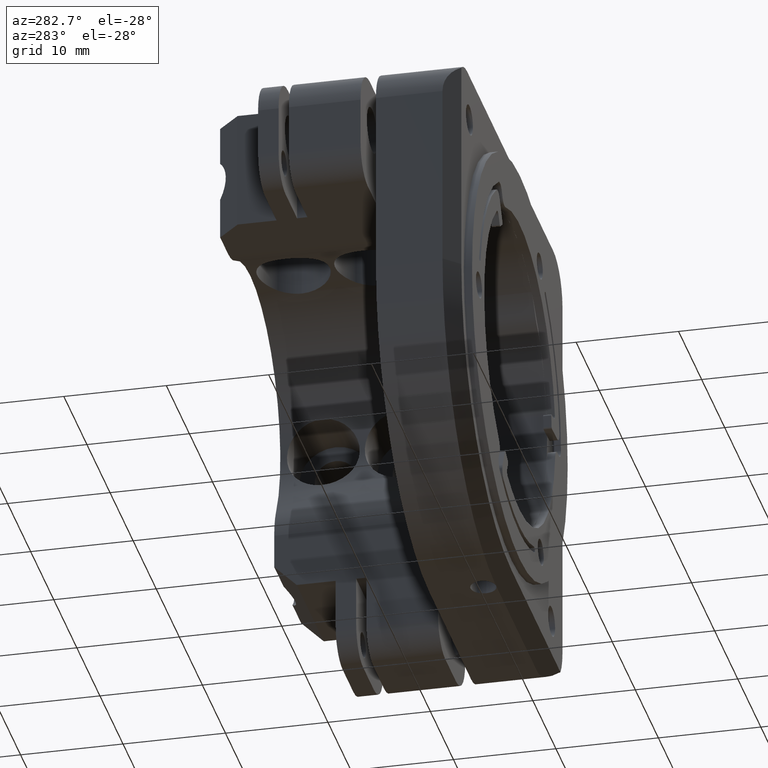
[diagram: clean part render]
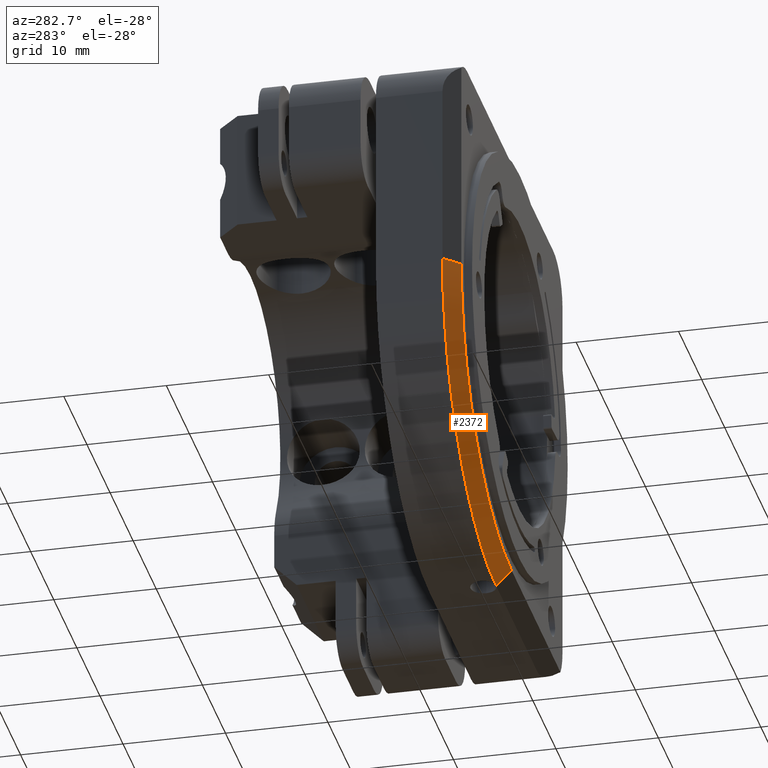
[diagram: same view with one face highlighted and labeled with its STEP entity id]
A machine part, auxiliary view. The second image highlights one B-rep face of the part: STEP entity #2372.
In plain terms, the highlighted conical surface has half-angle 45 deg.
Its self-contained STEP definition (entity closure, byte-faithful):
#178 = ORIENTED_EDGE ( 'NONE', *, *, #3839, .T. ) ;
#545 = DIRECTION ( 'NONE',  ( 0.0000000000000000000, 0.0000000000000000000, 1.000000000000000000 ) ) ;
#763 = CARTESIAN_POINT ( 'NONE',  ( 128.4348757045770200, 48.71614554938521700, -22.35000000000000100 ) ) ;
#1470 = VERTEX_POINT ( 'NONE', #5539 ) ;
#1535 = EDGE_CURVE ( 'NONE', #1659, #1628, #6236, .T. ) ;
#1568 = CARTESIAN_POINT ( 'NONE',  ( 105.1848757045770100, 48.71614554938520300, -22.35000000000000900 ) ) ;
#1628 = VERTEX_POINT ( 'NONE', #2387 ) ;
#1643 = CIRCLE ( 'NONE', #6572, 23.25000000000000000 ) ;
#1659 = VERTEX_POINT ( 'NONE', #6956 ) ;
#1744 = CARTESIAN_POINT ( 'NONE',  ( 105.1848757045770100, 48.71614554938520300, -22.35000000000000900 ) ) ;
#2016 = CIRCLE ( 'NONE', #2983, 21.75000000134611600 ) ;
#2171 = VERTEX_POINT ( 'NONE', #1568 ) ;
#2204 = CONICAL_SURFACE ( 'NONE', #3973, 23.25000000000001400, 0.7853981625000019400 ) ;
#2372 = ADVANCED_FACE ( 'NONE', ( #5238 ), #2204, .T. ) ;
#2387 = CARTESIAN_POINT ( 'NONE',  ( 128.4348757045770200, 47.21614554803898000, -44.10000000067305600 ) ) ;
#2484 = DIRECTION ( 'NONE',  ( 0.0000000000000000000, 0.0000000000000000000, 1.000000000000000000 ) ) ;
#2517 = EDGE_LOOP ( 'NONE', ( #4620, #178, #5468, #3781 ) ) ;
#2733 = DIRECTION ( 'NONE',  ( 0.0000000000000000000, 0.0000000000000000000, 1.000000000000000000 ) ) ;
#2983 = AXIS2_PLACEMENT_3D ( 'NONE', #4171, #4755, #545 ) ;
#3002 = EDGE_CURVE ( 'NONE', #1659, #2171, #1643, .T. ) ;
#3196 = EDGE_CURVE ( 'NONE', #1470, #2171, #3494, .T. ) ;
#3450 = DIRECTION ( 'NONE',  ( -0.7071067805519569700, 0.7071067818211380600, -1.298934083187515900E-016 ) ) ;
#3494 = LINE ( 'NONE', #1744, #6240 ) ;
#3781 = ORIENTED_EDGE ( 'NONE', *, *, #3002, .F. ) ;
#3839 = EDGE_CURVE ( 'NONE', #1628, #1470, #2016, .T. ) ;
#3973 = AXIS2_PLACEMENT_3D ( 'NONE', #763, #6015, #2484 ) ;
#4107 = DIRECTION ( 'NONE',  ( -8.659560554583440100E-017, -0.7071067818211380600, 0.7071067805519569700 ) ) ;
#4171 = CARTESIAN_POINT ( 'NONE',  ( 128.4348757045770200, 47.21614554803898000, -22.35000000000000100 ) ) ;
#4403 = CARTESIAN_POINT ( 'NONE',  ( 128.4348757045770200, 48.71614554938520300, -22.35000000000000100 ) ) ;
#4620 = ORIENTED_EDGE ( 'NONE', *, *, #1535, .T. ) ;
#4686 = VECTOR ( 'NONE', #4107, 1000.000000000000000 ) ;
#4755 = DIRECTION ( 'NONE',  ( -0.0000000000000000000, 1.000000000000000000, 0.0000000000000000000 ) ) ;
#5238 = FACE_OUTER_BOUND ( 'NONE', #2517, .T. ) ;
#5468 = ORIENTED_EDGE ( 'NONE', *, *, #3196, .T. ) ;
#5539 = CARTESIAN_POINT ( 'NONE',  ( 106.6848757039039400, 47.21614554803898000, -22.35000000000000500 ) ) ;
#6015 = DIRECTION ( 'NONE',  ( -0.0000000000000000000, 1.000000000000000000, 0.0000000000000000000 ) ) ;
#6236 = LINE ( 'NONE', #7021, #4686 ) ;
#6240 = VECTOR ( 'NONE', #3450, 1000.000000000000000 ) ;
#6572 = AXIS2_PLACEMENT_3D ( 'NONE', #4403, #7332, #2733 ) ;
#6956 = CARTESIAN_POINT ( 'NONE',  ( 128.4348757045770200, 48.71621656509376000, -45.60000000000000900 ) ) ;
#7021 = CARTESIAN_POINT ( 'NONE',  ( 128.4348757045770200, 48.71614554938520300, -45.60000000000000100 ) ) ;
#7332 = DIRECTION ( 'NONE',  ( 0.0000000000000000000, 1.000000000000000000, 0.0000000000000000000 ) ) ;